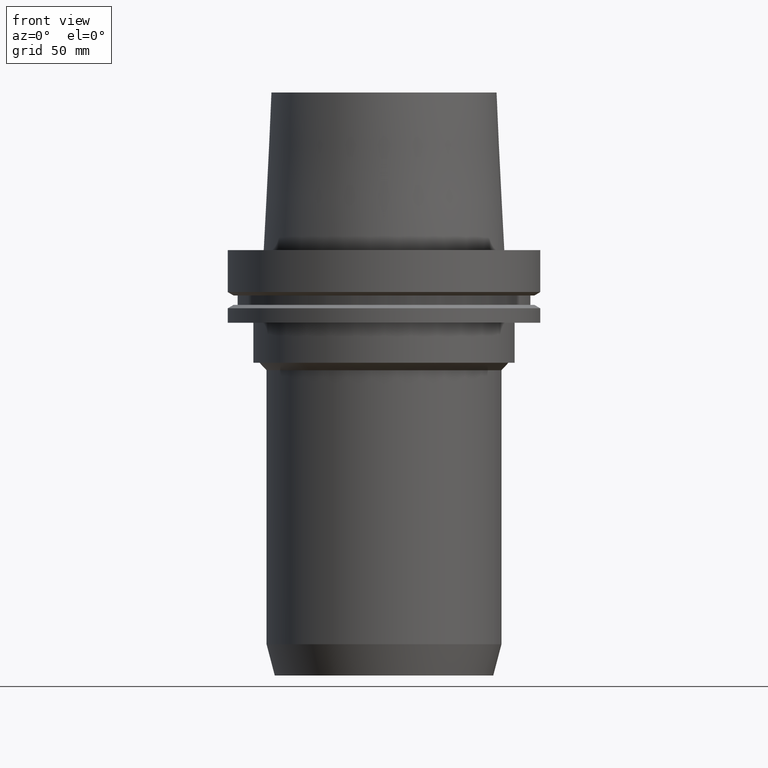
[diagram: clean part render]
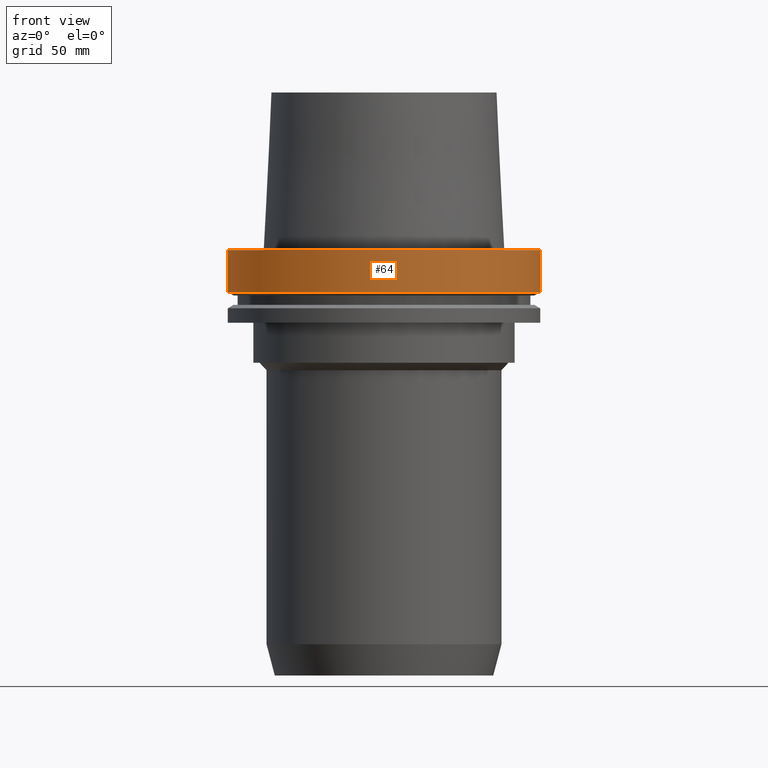
[diagram: same view with one face highlighted and labeled with its STEP entity id]
A machine part, front view. The second image highlights one B-rep face of the part: STEP entity #64.
In plain terms, the highlighted cylindrical surface (bore or boss wall) has radius 62.5 mm, axis along (0, 0, -1).
Its self-contained STEP definition (entity closure, byte-faithful):
#64=ADVANCED_FACE('Unnamed[1]',(#168,#169),#170,.T.);
#89=EDGE_CURVE('Unnamed[1]',#209,#209,#210,.T.);
#119=EDGE_CURVE('Unnamed[1]',#255,#255,#256,.T.);
#168=FACE_BOUND('',#311,.T.);
#169=FACE_BOUND('',#312,.T.);
#170=CYLINDRICAL_SURFACE('',#313,62.5000000000001);
#209=VERTEX_POINT('',#361);
#210=CIRCLE('',#362,62.5);
#255=VERTEX_POINT('',#418);
#256=CIRCLE('',#419,62.5000000000002);
#311=EDGE_LOOP('',(#476));
#312=EDGE_LOOP('',(#477));
#313=AXIS2_PLACEMENT_3D('',#478,#479,#480);
#361=CARTESIAN_POINT('',(1.02578894188644E-015,62.5,-16.7524047358084));
#362=AXIS2_PLACEMENT_3D('',#525,#526,#527);
#418=CARTESIAN_POINT('',(-5.58935713239973E-030,62.5000000000002,8.63540424946709E-014));
#419=AXIS2_PLACEMENT_3D('',#574,#575,#576);
#476=ORIENTED_EDGE('',*,*,#89,.F.);
#477=ORIENTED_EDGE('',*,*,#119,.T.);
#478=CARTESIAN_POINT('',(5.12894470943216E-016,1.02578894188643E-015,-8.37620236790417));
#479=DIRECTION('',(6.12323399573677E-017,1.22464679914735E-016,-1.0));
#480=DIRECTION('',(-1.23259516440783E-032,1.0,1.22464679914735E-016));
#525=CARTESIAN_POINT('',(1.02578894188644E-015,2.05157788377287E-015,-16.7524047358084));
#526=DIRECTION('',(6.12323399573676E-017,1.22464679914735E-016,-1.0));
#527=DIRECTION('',(-1.23259516440783E-032,1.0,1.22464679914735E-016));
#574=CARTESIAN_POINT('',(-5.22098332203606E-030,-1.04419666440721E-029,8.5265128291212E-014));
#575=DIRECTION('',(6.12323399573677E-017,1.22464679914735E-016,-1.0));
#576=DIRECTION('',(-1.23259516440783E-032,1.0,1.22464679914735E-016));